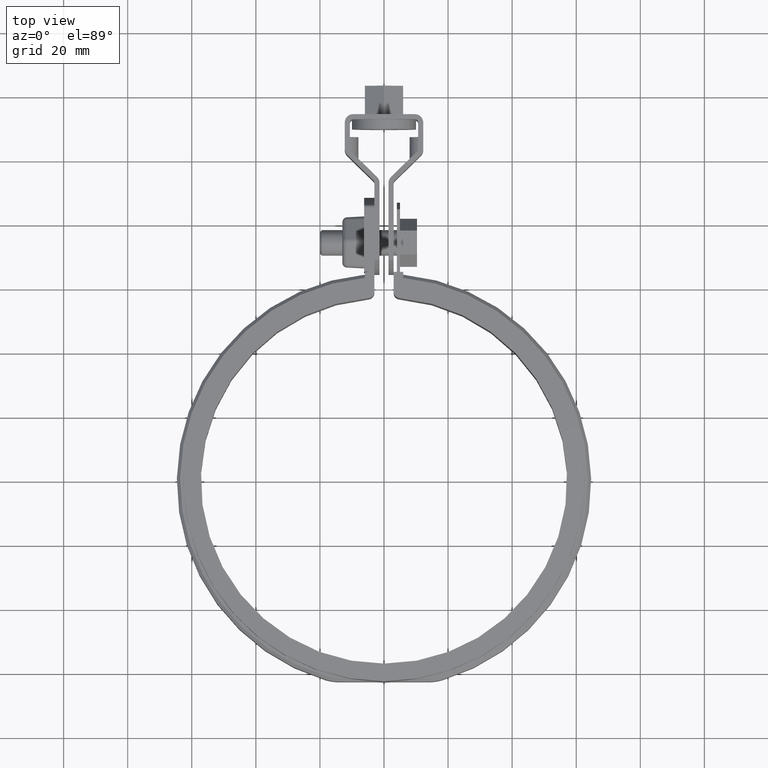
[diagram: clean part render]
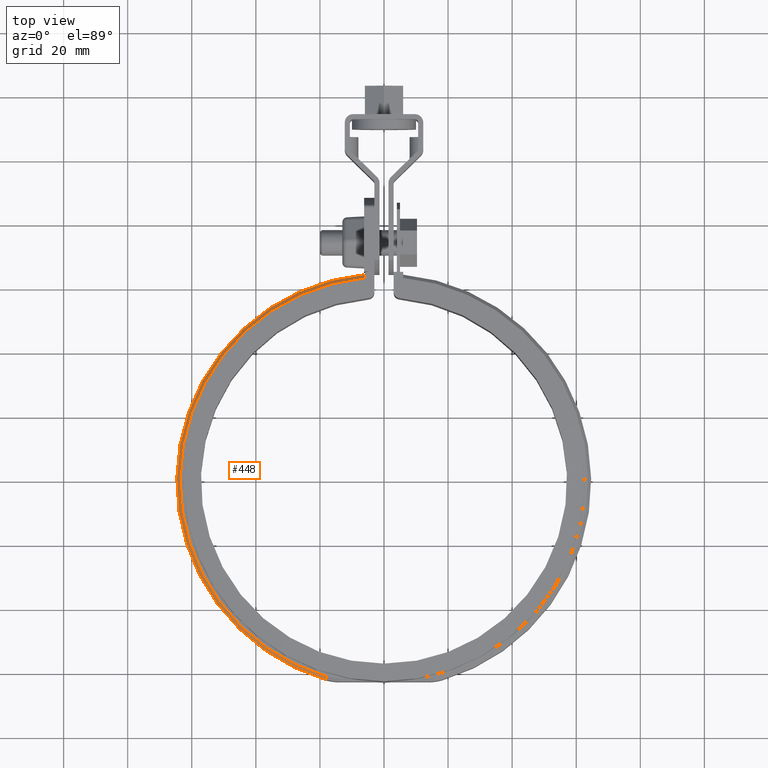
[diagram: same view with one face highlighted and labeled with its STEP entity id]
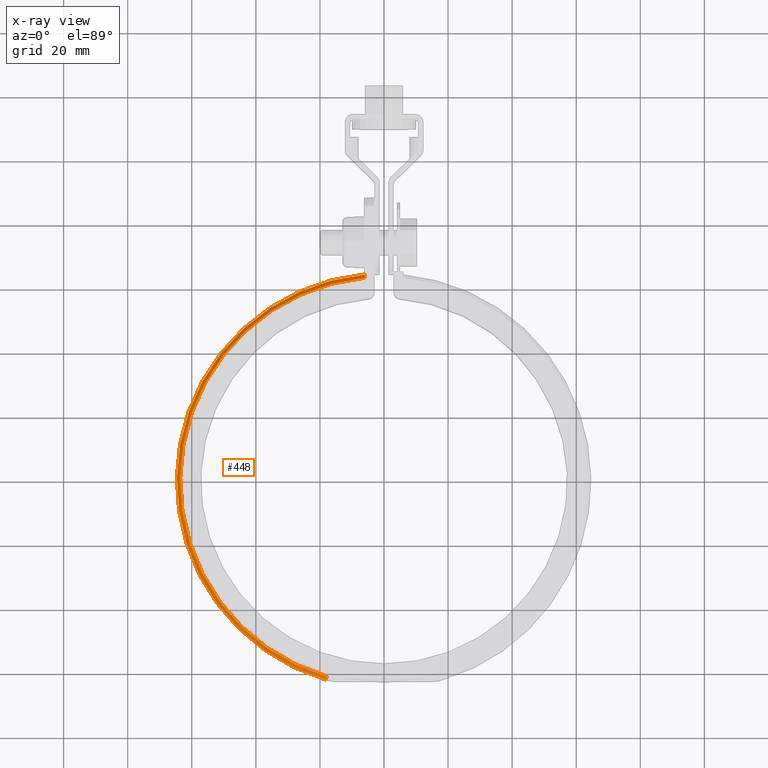
[diagram: x-ray of the same camera — body ghosted, the highlighted face saturated]
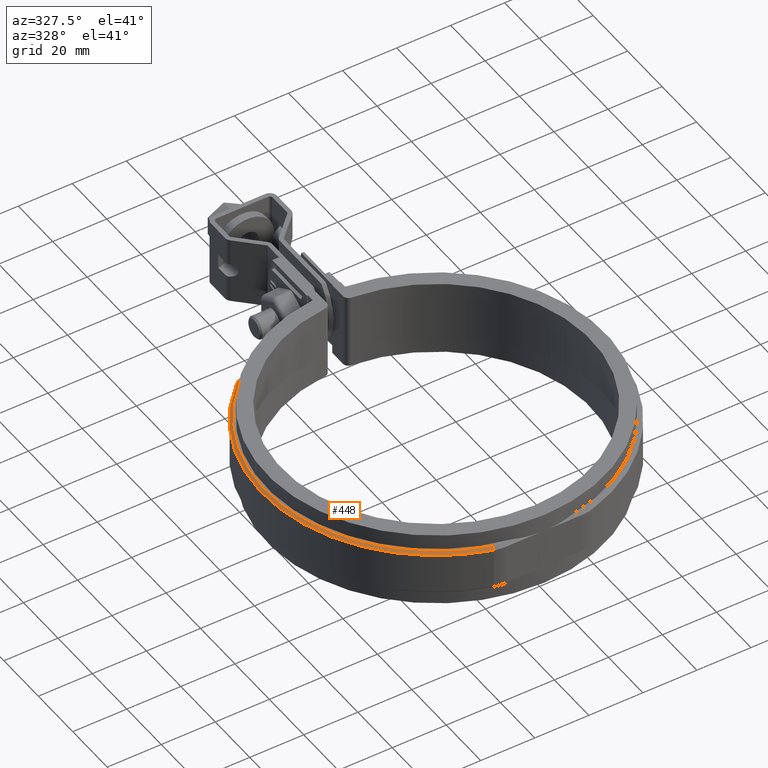
[diagram: same view with one face highlighted and labeled with its STEP entity id]
A machine part, top view. The second image highlights one B-rep face of the part: STEP entity #448.
The next image is the same camera in x-ray: the body ghosted, the highlighted face saturated — about 0% of this face is hidden behind the body in this view.
A second angle (auxiliary view) of the same face is appended — the face is thin or edge-on in the first view.
In plain terms, the highlighted conical surface has half-angle 45 deg.
Its self-contained STEP definition (entity closure, byte-faithful):
#448 = ADVANCED_FACE( '', ( #873 ), #874, .T. );
#873 = FACE_OUTER_BOUND( '', #2130, .T. );
#874 = CONICAL_SURFACE( '', #2131, 63.6500000000000, 0.785398163397450 );
#2130 = EDGE_LOOP( '', ( #3977, #3978, #3979, #3980 ) );
#2131 = AXIS2_PLACEMENT_3D( '', #3981, #3982, #3983 );
#3977 = ORIENTED_EDGE( '', *, *, #6224, .F. );
#3978 = ORIENTED_EDGE( '', *, *, #6258, .F. );
#3979 = ORIENTED_EDGE( '', *, *, #6259, .F. );
#3980 = ORIENTED_EDGE( '', *, *, #6260, .F. );
#3981 = CARTESIAN_POINT( '', ( -4.33680868994202E-015, 5.55111512312578E-014, 8.50000000000000 ) );
#3982 = DIRECTION( '', ( 0.000000000000000, 0.000000000000000, -1.00000000000000 ) );
#3983 = DIRECTION( '', ( -1.00000000000000, 0.000000000000000, 0.000000000000000 ) );
#6224 = EDGE_CURVE( '', #7299, #7301, #7302, .T. );
#6258 = EDGE_CURVE( '', #7355, #7299, #7356, .F. );
#6259 = EDGE_CURVE( '', #7357, #7355, #7358, .T. );
#6260 = EDGE_CURVE( '', #7301, #7357, #7359, .T. );
#7299 = VERTEX_POINT( '', #10621 );
#7301 = VERTEX_POINT( '', #10624 );
#7302 = B_SPLINE_CURVE_WITH_KNOTS( '', 3, ( #10625, #10626, #10627, #10628 ), .UNSPECIFIED., .F., .F., ( 4, 4 ), ( 3.46944695195361E-018, 0.00141733050374557 ), .UNSPECIFIED. );
#7355 = VERTEX_POINT( '', #10732 );
#7356 = CIRCLE( '', #10733, 64.6500000000000 );
#7357 = VERTEX_POINT( '', #10734 );
#7358 = LINE( '', #10735, #10736 );
#7359 = CIRCLE( '', #10737, 63.6500000000000 );
#10621 = CARTESIAN_POINT( '', ( -6.00000000000000, 64.3709756023629, 7.50000000000000 ) );
#10624 = CARTESIAN_POINT( '', ( -6.00000000000000, 63.3665724179556, 8.50000000000000 ) );
#10625 = CARTESIAN_POINT( '', ( -6.00000000000000, 64.3709756023630, 7.50000000000000 ) );
#10626 = CARTESIAN_POINT( '', ( -6.00000000000000, 64.0361859169225, 7.83334475906281 ) );
#10627 = CARTESIAN_POINT( '', ( -6.00000000000000, 63.7013850345735, 8.16667827309721 ) );
#10628 = CARTESIAN_POINT( '', ( -6.00000000000000, 63.3665724179556, 8.49999999999999 ) );
#10732 = CARTESIAN_POINT( '', ( -18.1643848332456, -62.0457703927492, 7.50000000000000 ) );
#10733 = AXIS2_PLACEMENT_3D( '', #12645, #12646, #12647 );
#10734 = CARTESIAN_POINT( '', ( -17.8834198706277, -61.0860523665659, 8.50000000000000 ) );
#10735 = CARTESIAN_POINT( '', ( -17.8834198706277, -61.0860523665659, 8.50000000000000 ) );
#10736 = VECTOR( '', #12648, 1000.00000000000 );
#10737 = AXIS2_PLACEMENT_3D( '', #12649, #12650, #12651 );
#12645 = CARTESIAN_POINT( '', ( -4.33680868994202E-015, 5.55111512312578E-014, 7.50000000000000 ) );
#12646 = DIRECTION( '', ( 0.000000000000000, 0.000000000000000, 1.00000000000000 ) );
#12647 = DIRECTION( '', ( 1.00000000000000, 0.000000000000000, 0.000000000000000 ) );
#12648 = DIRECTION( '', ( -0.198672230342924, -0.678623124341164, -0.707106781186551 ) );
#12649 = CARTESIAN_POINT( '', ( -4.33680868994202E-015, 5.55111512312578E-014, 8.50000000000000 ) );
#12650 = DIRECTION( '', ( 0.000000000000000, 0.000000000000000, 1.00000000000000 ) );
#12651 = DIRECTION( '', ( 1.00000000000000, 0.000000000000000, 0.000000000000000 ) );